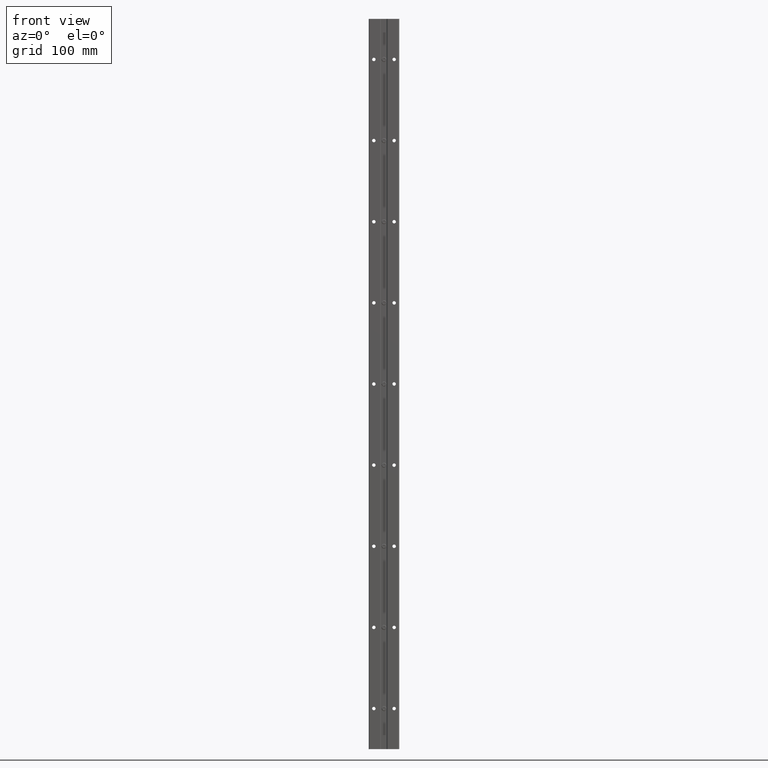
[diagram: clean part render]
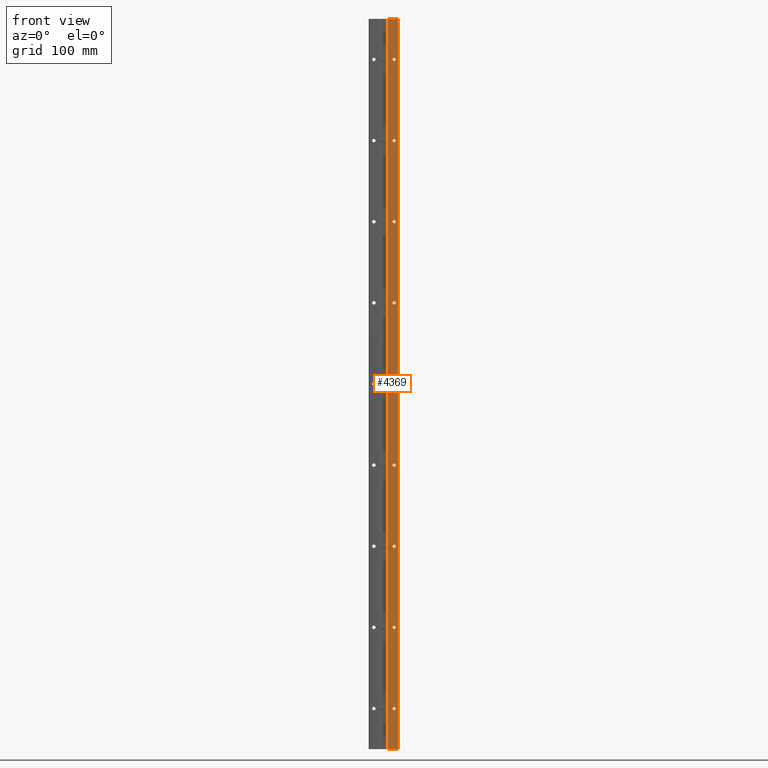
[diagram: same view with one face highlighted and labeled with its STEP entity id]
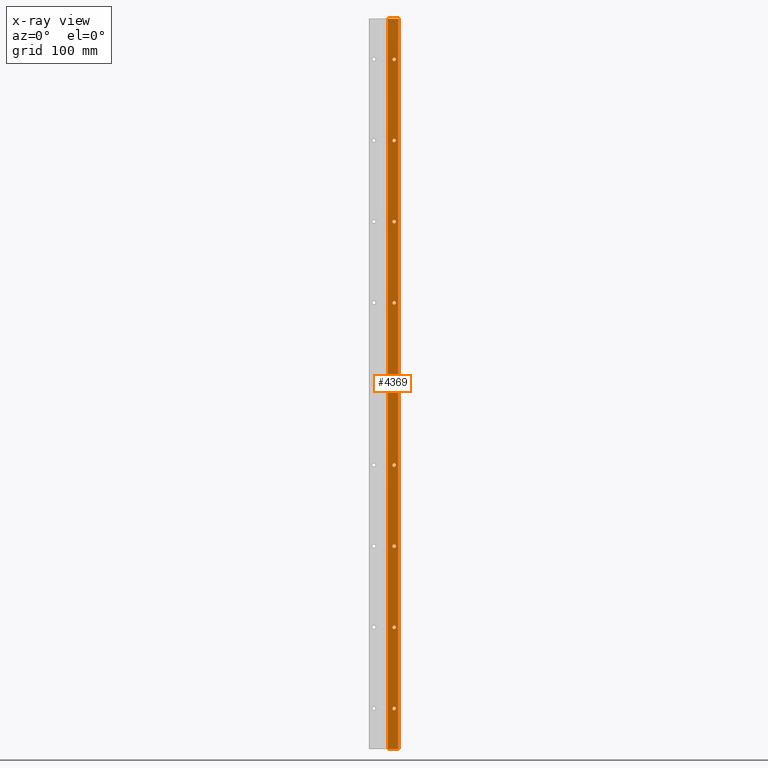
[diagram: x-ray of the same camera — body ghosted, the highlighted face saturated]
A machine part, front view. The second image highlights one B-rep face of the part: STEP entity #4369.
The next image is the same camera in x-ray: the body ghosted, the highlighted face saturated — about 0% of this face is hidden behind the body in this view.
In plain terms, the highlighted planar face has unit normal (0, 1, 0).
Its self-contained STEP definition (entity closure, byte-faithful):
#11 = VERTEX_POINT ( 'NONE', #5321 ) ;
#12 = EDGE_LOOP ( 'NONE', ( #9462, #11238 ) ) ;
#69 = CIRCLE ( 'NONE', #11611, 0.08500000000000086653 ) ;
#100 = EDGE_CURVE ( 'NONE', #8548, #10013, #6157, .T. ) ;
#256 = CARTESIAN_POINT ( 'NONE',  ( 0.5000000000000000000, 0.000000000000000000, -29.99999999999999645 ) ) ;
#331 = CARTESIAN_POINT ( 'NONE',  ( 0.5000000000000000000, 0.000000000000000000, -17.91499999999999915 ) ) ;
#336 = DIRECTION ( 'NONE',  ( 0.000000000000000000, 0.000000000000000000, 1.000000000000000000 ) ) ;
#380 = ORIENTED_EDGE ( 'NONE', *, *, #2407, .T. ) ;
#511 = CARTESIAN_POINT ( 'NONE',  ( 0.5000000000000000000, 0.000000000000000000, -9.914999999999999147 ) ) ;
#561 = CIRCLE ( 'NONE', #4036, 0.08500000000000086653 ) ;
#584 = CIRCLE ( 'NONE', #778, 0.08500000000000086653 ) ;
#586 = CARTESIAN_POINT ( 'NONE',  ( 0.1844203811574915142, 4.802076551362963074E-18, -36.00000000000000000 ) ) ;
#618 = CARTESIAN_POINT ( 'NONE',  ( 0.5000000000000000000, 0.000000000000000000, -5.999999999999999112 ) ) ;
#644 = ORIENTED_EDGE ( 'NONE', *, *, #7796, .T. ) ;
#664 = EDGE_CURVE ( 'NONE', #4430, #4519, #9178, .T. ) ;
#745 = VECTOR ( 'NONE', #885, 39.37007874015748143 ) ;
#749 = ORIENTED_EDGE ( 'NONE', *, *, #6706, .T. ) ;
#778 = AXIS2_PLACEMENT_3D ( 'NONE', #6699, #6646, #10137 ) ;
#873 = CARTESIAN_POINT ( 'NONE',  ( 0.5000000000000000000, 0.000000000000000000, -22.00000000000000000 ) ) ;
#885 = DIRECTION ( 'NONE',  ( 0.000000000000000000, 0.000000000000000000, 1.000000000000000000 ) ) ;
#902 = PLANE ( 'NONE',  #10454 ) ;
#963 = FACE_BOUND ( 'NONE', #10847, .T. ) ;
#1044 = AXIS2_PLACEMENT_3D ( 'NONE', #9386, #1104, #4791 ) ;
#1088 = CARTESIAN_POINT ( 'NONE',  ( 0.5000000000000000000, 0.000000000000000000, -22.08500000000000085 ) ) ;
#1104 = DIRECTION ( 'NONE',  ( 0.000000000000000000, 1.000000000000000000, 0.000000000000000000 ) ) ;
#1149 = CARTESIAN_POINT ( 'NONE',  ( 0.1844203811574915142, 0.000000000000000000, -36.00000000000000000 ) ) ;
#1414 = CIRCLE ( 'NONE', #10294, 0.08500000000000004774 ) ;
#1556 = VERTEX_POINT ( 'NONE', #7356 ) ;
#1614 = AXIS2_PLACEMENT_3D ( 'NONE', #2140, #5835, #336 ) ;
#1615 = LINE ( 'NONE', #1667, #745 ) ;
#1624 = DIRECTION ( 'NONE',  ( 0.000000000000000000, 1.000000000000000000, 0.000000000000000000 ) ) ;
#1629 = EDGE_CURVE ( 'NONE', #7633, #2611, #584, .T. ) ;
#1647 = DIRECTION ( 'NONE',  ( 0.000000000000000000, 0.000000000000000000, 1.000000000000000000 ) ) ;
#1667 = CARTESIAN_POINT ( 'NONE',  ( 0.7005796188425083004, 0.000000000000000000, -37.75252057657289129 ) ) ;
#1689 = DIRECTION ( 'NONE',  ( 0.000000000000000000, 1.000000000000000000, 0.000000000000000000 ) ) ;
#1718 = CIRCLE ( 'NONE', #11754, 0.08500000000000086653 ) ;
#1739 = CARTESIAN_POINT ( 'NONE',  ( 0.1844203811574878782, 6.146657985744592735E-16, 0.000000000000000000 ) ) ;
#1794 = CARTESIAN_POINT ( 'NONE',  ( 0.5000000000000000000, 0.000000000000000000, -6.084999999999999076 ) ) ;
#1871 = ORIENTED_EDGE ( 'NONE', *, *, #11585, .T. ) ;
#1929 = FACE_BOUND ( 'NONE', #9196, .T. ) ;
#1936 = CARTESIAN_POINT ( 'NONE',  ( 0.5000000000000000000, 0.000000000000000000, -34.00000000000000000 ) ) ;
#2095 = ORIENTED_EDGE ( 'NONE', *, *, #7856, .T. ) ;
#2140 = CARTESIAN_POINT ( 'NONE',  ( 0.5000000000000000000, 0.000000000000000000, -25.99999999999999645 ) ) ;
#2208 = CARTESIAN_POINT ( 'NONE',  ( 0.5000000000000000000, 0.000000000000000000, -2.000000000000000000 ) ) ;
#2407 = EDGE_CURVE ( 'NONE', #9763, #6131, #561, .T. ) ;
#2421 = ORIENTED_EDGE ( 'NONE', *, *, #8379, .T. ) ;
#2435 = DIRECTION ( 'NONE',  ( 0.000000000000000000, 1.000000000000000000, 0.000000000000000000 ) ) ;
#2608 = DIRECTION ( 'NONE',  ( 0.000000000000000000, 1.000000000000000000, 0.000000000000000000 ) ) ;
#2611 = VERTEX_POINT ( 'NONE', #10648 ) ;
#2838 = CARTESIAN_POINT ( 'NONE',  ( 0.5000000000000000000, 0.000000000000000000, -14.00000000000000000 ) ) ;
#2883 = CARTESIAN_POINT ( 'NONE',  ( 0.5000000000000000000, 0.000000000000000000, -10.00000000000000000 ) ) ;
#2922 = ORIENTED_EDGE ( 'NONE', *, *, #3303, .F. ) ;
#3067 = DIRECTION ( 'NONE',  ( 0.000000000000000000, 0.000000000000000000, 1.000000000000000000 ) ) ;
#3112 = DIRECTION ( 'NONE',  ( 0.000000000000000000, 1.000000000000000000, 0.000000000000000000 ) ) ;
#3173 = EDGE_CURVE ( 'NONE', #7578, #8467, #11383, .T. ) ;
#3184 = ORIENTED_EDGE ( 'NONE', *, *, #9051, .T. ) ;
#3243 = ORIENTED_EDGE ( 'NONE', *, *, #8935, .T. ) ;
#3283 = EDGE_LOOP ( 'NONE', ( #3184, #7525 ) ) ;
#3303 = EDGE_CURVE ( 'NONE', #5317, #7413, #4142, .T. ) ;
#3484 = CARTESIAN_POINT ( 'NONE',  ( 0.5000000000000000000, 0.000000000000000000, -25.91499999999999559 ) ) ;
#3574 = VERTEX_POINT ( 'NONE', #5655 ) ;
#3621 = DIRECTION ( 'NONE',  ( 0.000000000000000000, 1.000000000000000000, 0.000000000000000000 ) ) ;
#3702 = DIRECTION ( 'NONE',  ( -1.000000000000000000, 0.000000000000000000, 0.000000000000000000 ) ) ;
#3705 = DIRECTION ( 'NONE',  ( 0.000000000000000000, 0.000000000000000000, 1.000000000000000000 ) ) ;
#3752 = DIRECTION ( 'NONE',  ( 0.000000000000000000, -0.000000000000000000, 1.000000000000000000 ) ) ;
#3759 = ORIENTED_EDGE ( 'NONE', *, *, #10850, .T. ) ;
#3793 = EDGE_LOOP ( 'NONE', ( #1871, #380 ) ) ;
#3817 = CARTESIAN_POINT ( 'NONE',  ( 0.5000000000000000000, 0.000000000000000000, -22.00000000000000000 ) ) ;
#3842 = CARTESIAN_POINT ( 'NONE',  ( 0.5000000000000000000, 0.000000000000000000, -30.08499999999999730 ) ) ;
#3859 = DIRECTION ( 'NONE',  ( 0.000000000000000000, 0.000000000000000000, 1.000000000000000000 ) ) ;
#3864 = VERTEX_POINT ( 'NONE', #11602 ) ;
#3867 = VECTOR ( 'NONE', #1647, 39.37007874015748143 ) ;
#3880 = DIRECTION ( 'NONE',  ( 0.000000000000000000, 0.000000000000000000, 1.000000000000000000 ) ) ;
#3912 = DIRECTION ( 'NONE',  ( 0.000000000000000000, 1.000000000000000000, 0.000000000000000000 ) ) ;
#4036 = AXIS2_PLACEMENT_3D ( 'NONE', #11136, #11081, #9329 ) ;
#4142 = LINE ( 'NONE', #6815, #11568 ) ;
#4206 = CARTESIAN_POINT ( 'NONE',  ( 0.5000000000000000000, 0.000000000000000000, -10.00000000000000000 ) ) ;
#4302 = CIRCLE ( 'NONE', #1044, 0.08500000000000086653 ) ;
#4369 = ADVANCED_FACE ( 'NONE', ( #4714, #5442, #963, #1929, #11112, #7365, #7424, #6469, #8390, #11884 ), #902, .F. ) ;
#4399 = CIRCLE ( 'NONE', #10962, 0.08500000000000086653 ) ;
#4430 = VERTEX_POINT ( 'NONE', #8001 ) ;
#4459 = AXIS2_PLACEMENT_3D ( 'NONE', #8997, #10645, #5135 ) ;
#4519 = VERTEX_POINT ( 'NONE', #586 ) ;
#4529 = CARTESIAN_POINT ( 'NONE',  ( -2.500000000000000000, 0.000000000000000000, 0.1250000000000000000 ) ) ;
#4607 = CIRCLE ( 'NONE', #11366, 0.08500000000000086653 ) ;
#4714 = FACE_BOUND ( 'NONE', #12, .T. ) ;
#4791 = DIRECTION ( 'NONE',  ( 0.000000000000000000, 0.000000000000000000, 1.000000000000000000 ) ) ;
#4822 = AXIS2_PLACEMENT_3D ( 'NONE', #2208, #2435, #11490 ) ;
#4892 = CARTESIAN_POINT ( 'NONE',  ( 0.5000000000000000000, 0.000000000000000000, -2.000000000000000000 ) ) ;
#4924 = CARTESIAN_POINT ( 'NONE',  ( 0.5000000000000000000, 0.000000000000000000, -18.00000000000000000 ) ) ;
#4937 = EDGE_CURVE ( 'NONE', #10013, #8548, #69, .T. ) ;
#4996 = EDGE_CURVE ( 'NONE', #7063, #7338, #10083, .T. ) ;
#5004 = DIRECTION ( 'NONE',  ( 0.000000000000000000, 1.000000000000000000, 0.000000000000000000 ) ) ;
#5048 = AXIS2_PLACEMENT_3D ( 'NONE', #1936, #11887, #11062 ) ;
#5115 = VERTEX_POINT ( 'NONE', #5555 ) ;
#5135 = DIRECTION ( 'NONE',  ( 0.000000000000000000, 0.000000000000000000, 1.000000000000000000 ) ) ;
#5178 = AXIS2_PLACEMENT_3D ( 'NONE', #2838, #7425, #7189 ) ;
#5218 = CARTESIAN_POINT ( 'NONE',  ( 0.5000000000000000000, 0.000000000000000000, -26.08499999999999730 ) ) ;
#5258 = EDGE_LOOP ( 'NONE', ( #8176, #2421 ) ) ;
#5278 = EDGE_LOOP ( 'NONE', ( #5386, #749 ) ) ;
#5317 = VERTEX_POINT ( 'NONE', #1739 ) ;
#5321 = CARTESIAN_POINT ( 'NONE',  ( 0.5000000000000000000, 0.000000000000000000, -21.91499999999999915 ) ) ;
#5325 = DIRECTION ( 'NONE',  ( 0.000000000000000000, 0.000000000000000000, 1.000000000000000000 ) ) ;
#5386 = ORIENTED_EDGE ( 'NONE', *, *, #9422, .T. ) ;
#5442 = FACE_BOUND ( 'NONE', #5258, .T. ) ;
#5446 = CARTESIAN_POINT ( 'NONE',  ( 0.5000000000000000000, 0.000000000000000000, -14.00000000000000000 ) ) ;
#5520 = DIRECTION ( 'NONE',  ( 0.000000000000000000, 0.000000000000000000, 1.000000000000000000 ) ) ;
#5555 = CARTESIAN_POINT ( 'NONE',  ( 0.5000000000000000000, 0.000000000000000000, -1.915000000000000036 ) ) ;
#5655 = CARTESIAN_POINT ( 'NONE',  ( 0.5000000000000000000, 0.000000000000000000, -29.91499999999999559 ) ) ;
#5796 = CIRCLE ( 'NONE', #4822, 0.08500000000000004774 ) ;
#5835 = DIRECTION ( 'NONE',  ( 0.000000000000000000, 1.000000000000000000, 0.000000000000000000 ) ) ;
#5856 = VERTEX_POINT ( 'NONE', #3842 ) ;
#6014 = CIRCLE ( 'NONE', #5048, 0.08500000000000086653 ) ;
#6131 = VERTEX_POINT ( 'NONE', #5218 ) ;
#6157 = CIRCLE ( 'NONE', #5178, 0.08500000000000086653 ) ;
#6446 = CIRCLE ( 'NONE', #1614, 0.08500000000000086653 ) ;
#6469 = FACE_BOUND ( 'NONE', #3793, .T. ) ;
#6646 = DIRECTION ( 'NONE',  ( 0.000000000000000000, 1.000000000000000000, 0.000000000000000000 ) ) ;
#6699 = CARTESIAN_POINT ( 'NONE',  ( 0.5000000000000000000, 0.000000000000000000, -34.00000000000000000 ) ) ;
#6706 = EDGE_CURVE ( 'NONE', #3574, #5856, #4399, .T. ) ;
#6815 = CARTESIAN_POINT ( 'NONE',  ( -2.500000000000000000, 0.000000000000000000, 0.000000000000000000 ) ) ;
#7024 = EDGE_CURVE ( 'NONE', #4430, #7413, #1615, .T. ) ;
#7063 = VERTEX_POINT ( 'NONE', #1794 ) ;
#7083 = LINE ( 'NONE', #7988, #3867 ) ;
#7136 = CIRCLE ( 'NONE', #10420, 0.08500000000000086653 ) ;
#7164 = CIRCLE ( 'NONE', #8704, 0.08500000000000086653 ) ;
#7189 = DIRECTION ( 'NONE',  ( 0.000000000000000000, 0.000000000000000000, 1.000000000000000000 ) ) ;
#7199 = CARTESIAN_POINT ( 'NONE',  ( 0.5000000000000000000, 0.000000000000000000, -33.91499999999999915 ) ) ;
#7338 = VERTEX_POINT ( 'NONE', #10843 ) ;
#7343 = EDGE_LOOP ( 'NONE', ( #7753, #3759 ) ) ;
#7356 = CARTESIAN_POINT ( 'NONE',  ( 0.5000000000000000000, 0.000000000000000000, -2.084999999999999964 ) ) ;
#7365 = FACE_BOUND ( 'NONE', #3283, .T. ) ;
#7366 = EDGE_CURVE ( 'NONE', #11, #10379, #4607, .T. ) ;
#7413 = VERTEX_POINT ( 'NONE', #9081 ) ;
#7424 = FACE_BOUND ( 'NONE', #9114, .T. ) ;
#7425 = DIRECTION ( 'NONE',  ( 0.000000000000000000, 1.000000000000000000, 0.000000000000000000 ) ) ;
#7525 = ORIENTED_EDGE ( 'NONE', *, *, #1629, .T. ) ;
#7578 = VERTEX_POINT ( 'NONE', #10533 ) ;
#7626 = CARTESIAN_POINT ( 'NONE',  ( 0.5000000000000000000, 0.000000000000000000, -13.91499999999999915 ) ) ;
#7633 = VERTEX_POINT ( 'NONE', #7199 ) ;
#7753 = ORIENTED_EDGE ( 'NONE', *, *, #8191, .T. ) ;
#7782 = DIRECTION ( 'NONE',  ( 0.000000000000000000, 1.000000000000000000, 0.000000000000000000 ) ) ;
#7796 = EDGE_CURVE ( 'NONE', #10379, #11, #1718, .T. ) ;
#7856 = EDGE_CURVE ( 'NONE', #8467, #7578, #7136, .T. ) ;
#7988 = CARTESIAN_POINT ( 'NONE',  ( 0.1844203811574915142, 0.000000000000000000, -37.75252057657289129 ) ) ;
#8001 = CARTESIAN_POINT ( 'NONE',  ( 0.7005796188425085225, 0.000000000000000000, -36.00000000000000000 ) ) ;
#8141 = CARTESIAN_POINT ( 'NONE',  ( 0.5000000000000000000, 0.000000000000000000, -29.99999999999999645 ) ) ;
#8176 = ORIENTED_EDGE ( 'NONE', *, *, #11550, .T. ) ;
#8191 = EDGE_CURVE ( 'NONE', #1556, #5115, #5796, .T. ) ;
#8379 = EDGE_CURVE ( 'NONE', #9955, #3864, #10040, .T. ) ;
#8390 = FACE_BOUND ( 'NONE', #7343, .T. ) ;
#8467 = VERTEX_POINT ( 'NONE', #511 ) ;
#8479 = AXIS2_PLACEMENT_3D ( 'NONE', #2883, #3912, #8491 ) ;
#8491 = DIRECTION ( 'NONE',  ( 0.000000000000000000, 0.000000000000000000, 1.000000000000000000 ) ) ;
#8538 = EDGE_CURVE ( 'NONE', #4519, #5317, #7083, .T. ) ;
#8546 = DIRECTION ( 'NONE',  ( 0.000000000000000000, 0.000000000000000000, 1.000000000000000000 ) ) ;
#8548 = VERTEX_POINT ( 'NONE', #9012 ) ;
#8704 = AXIS2_PLACEMENT_3D ( 'NONE', #8141, #1624, #11824 ) ;
#8781 = DIRECTION ( 'NONE',  ( 1.000000000000000000, 0.000000000000000000, 0.000000000000000000 ) ) ;
#8935 = EDGE_CURVE ( 'NONE', #7338, #7063, #10820, .T. ) ;
#8960 = EDGE_LOOP ( 'NONE', ( #2922, #10842, #11627, #11514 ) ) ;
#8996 = DIRECTION ( 'NONE',  ( 0.000000000000000000, 0.000000000000000000, 1.000000000000000000 ) ) ;
#8997 = CARTESIAN_POINT ( 'NONE',  ( 0.5000000000000000000, 0.000000000000000000, -5.999999999999999112 ) ) ;
#9012 = CARTESIAN_POINT ( 'NONE',  ( 0.5000000000000000000, 0.000000000000000000, -14.08500000000000085 ) ) ;
#9051 = EDGE_CURVE ( 'NONE', #2611, #7633, #6014, .T. ) ;
#9081 = CARTESIAN_POINT ( 'NONE',  ( 0.7005796188425085225, 0.000000000000000000, 0.000000000000000000 ) ) ;
#9114 = EDGE_LOOP ( 'NONE', ( #644, #9382 ) ) ;
#9178 = LINE ( 'NONE', #1149, #10612 ) ;
#9196 = EDGE_LOOP ( 'NONE', ( #9653, #2095 ) ) ;
#9329 = DIRECTION ( 'NONE',  ( 0.000000000000000000, 0.000000000000000000, 1.000000000000000000 ) ) ;
#9382 = ORIENTED_EDGE ( 'NONE', *, *, #7366, .T. ) ;
#9386 = CARTESIAN_POINT ( 'NONE',  ( 0.5000000000000000000, 0.000000000000000000, -18.00000000000000000 ) ) ;
#9410 = DIRECTION ( 'NONE',  ( 0.000000000000000000, 1.000000000000000000, 0.000000000000000000 ) ) ;
#9422 = EDGE_CURVE ( 'NONE', #5856, #3574, #7164, .T. ) ;
#9462 = ORIENTED_EDGE ( 'NONE', *, *, #100, .T. ) ;
#9653 = ORIENTED_EDGE ( 'NONE', *, *, #3173, .T. ) ;
#9763 = VERTEX_POINT ( 'NONE', #3484 ) ;
#9955 = VERTEX_POINT ( 'NONE', #331 ) ;
#10013 = VERTEX_POINT ( 'NONE', #7626 ) ;
#10040 = CIRCLE ( 'NONE', #11565, 0.08500000000000086653 ) ;
#10083 = CIRCLE ( 'NONE', #10274, 0.08499999999999977018 ) ;
#10137 = DIRECTION ( 'NONE',  ( 0.000000000000000000, 0.000000000000000000, 1.000000000000000000 ) ) ;
#10233 = DIRECTION ( 'NONE',  ( 0.000000000000000000, 1.000000000000000000, 0.000000000000000000 ) ) ;
#10274 = AXIS2_PLACEMENT_3D ( 'NONE', #618, #11837, #8996 ) ;
#10294 = AXIS2_PLACEMENT_3D ( 'NONE', #4892, #5004, #3067 ) ;
#10379 = VERTEX_POINT ( 'NONE', #1088 ) ;
#10420 = AXIS2_PLACEMENT_3D ( 'NONE', #4206, #7782, #3880 ) ;
#10454 = AXIS2_PLACEMENT_3D ( 'NONE', #4529, #3621, #3752 ) ;
#10533 = CARTESIAN_POINT ( 'NONE',  ( 0.5000000000000000000, 0.000000000000000000, -10.08500000000000085 ) ) ;
#10612 = VECTOR ( 'NONE', #3702, 39.37007874015748143 ) ;
#10645 = DIRECTION ( 'NONE',  ( 0.000000000000000000, 1.000000000000000000, 0.000000000000000000 ) ) ;
#10648 = CARTESIAN_POINT ( 'NONE',  ( 0.5000000000000000000, 0.000000000000000000, -34.08500000000000085 ) ) ;
#10649 = ORIENTED_EDGE ( 'NONE', *, *, #4996, .T. ) ;
#10820 = CIRCLE ( 'NONE', #4459, 0.08499999999999977018 ) ;
#10842 = ORIENTED_EDGE ( 'NONE', *, *, #8538, .F. ) ;
#10843 = CARTESIAN_POINT ( 'NONE',  ( 0.5000000000000000000, 0.000000000000000000, -5.915000000000000036 ) ) ;
#10847 = EDGE_LOOP ( 'NONE', ( #10649, #3243 ) ) ;
#10850 = EDGE_CURVE ( 'NONE', #5115, #1556, #1414, .T. ) ;
#10962 = AXIS2_PLACEMENT_3D ( 'NONE', #256, #9410, #3859 ) ;
#11062 = DIRECTION ( 'NONE',  ( 0.000000000000000000, 0.000000000000000000, 1.000000000000000000 ) ) ;
#11081 = DIRECTION ( 'NONE',  ( 0.000000000000000000, 1.000000000000000000, 0.000000000000000000 ) ) ;
#11112 = FACE_BOUND ( 'NONE', #5278, .T. ) ;
#11136 = CARTESIAN_POINT ( 'NONE',  ( 0.5000000000000000000, 0.000000000000000000, -25.99999999999999645 ) ) ;
#11238 = ORIENTED_EDGE ( 'NONE', *, *, #4937, .T. ) ;
#11366 = AXIS2_PLACEMENT_3D ( 'NONE', #873, #10233, #5520 ) ;
#11383 = CIRCLE ( 'NONE', #8479, 0.08500000000000086653 ) ;
#11490 = DIRECTION ( 'NONE',  ( 0.000000000000000000, 0.000000000000000000, 1.000000000000000000 ) ) ;
#11514 = ORIENTED_EDGE ( 'NONE', *, *, #7024, .T. ) ;
#11550 = EDGE_CURVE ( 'NONE', #3864, #9955, #4302, .T. ) ;
#11565 = AXIS2_PLACEMENT_3D ( 'NONE', #4924, #3112, #8546 ) ;
#11568 = VECTOR ( 'NONE', #8781, 39.37007874015748143 ) ;
#11585 = EDGE_CURVE ( 'NONE', #6131, #9763, #6446, .T. ) ;
#11602 = CARTESIAN_POINT ( 'NONE',  ( 0.5000000000000000000, 0.000000000000000000, -18.08500000000000085 ) ) ;
#11611 = AXIS2_PLACEMENT_3D ( 'NONE', #5446, #1689, #5325 ) ;
#11627 = ORIENTED_EDGE ( 'NONE', *, *, #664, .F. ) ;
#11754 = AXIS2_PLACEMENT_3D ( 'NONE', #3817, #2608, #3705 ) ;
#11824 = DIRECTION ( 'NONE',  ( 0.000000000000000000, 0.000000000000000000, 1.000000000000000000 ) ) ;
#11837 = DIRECTION ( 'NONE',  ( 0.000000000000000000, 1.000000000000000000, 0.000000000000000000 ) ) ;
#11884 = FACE_OUTER_BOUND ( 'NONE', #8960, .T. ) ;
#11887 = DIRECTION ( 'NONE',  ( 0.000000000000000000, 1.000000000000000000, 0.000000000000000000 ) ) ;